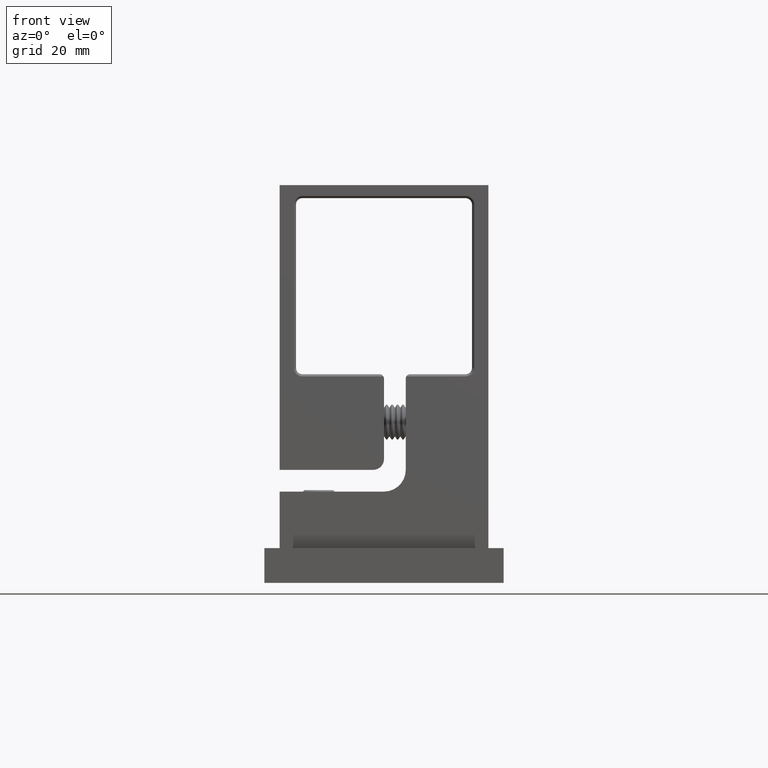
[diagram: clean part render]
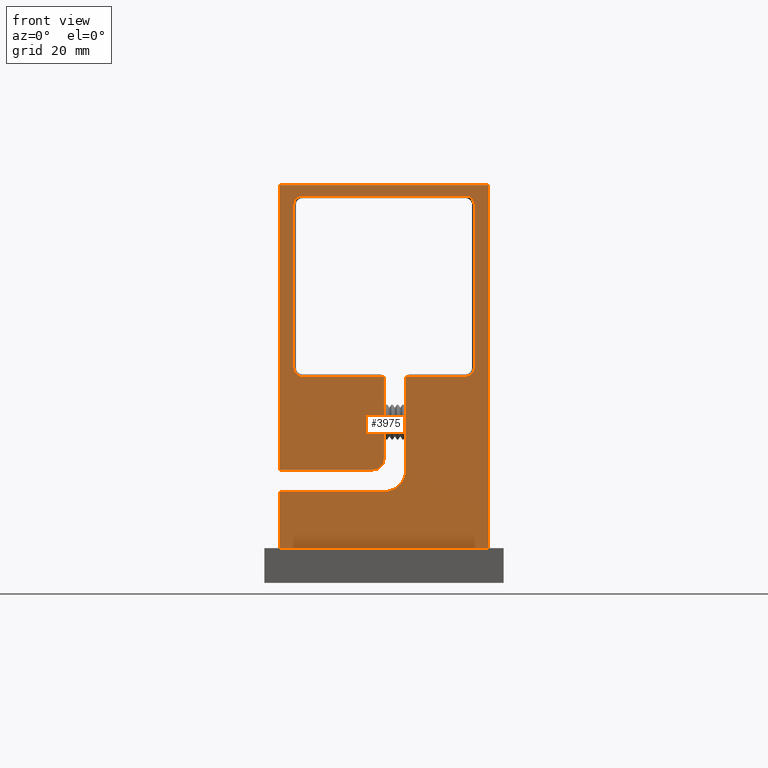
[diagram: same view with one face highlighted and labeled with its STEP entity id]
A machine part, front view. The second image highlights one B-rep face of the part: STEP entity #3975.
In plain terms, the highlighted planar face has unit normal (0, 1, 0).
Its self-contained STEP definition (entity closure, byte-faithful):
#139 = CARTESIAN_POINT ( 'NONE',  ( 8.000000000000007100, 18.00000000000004300, -4.999999999999990200 ) ) ;
#371 = CARTESIAN_POINT ( 'NONE',  ( 7.999999999999972500, 0.0000000000000000000, -23.99999999999993600 ) ) ;
#438 = CARTESIAN_POINT ( 'NONE',  ( 7.999999999999944900, 39.49999999999997900, -18.74999999999992200 ) ) ;
#552 = VERTEX_POINT ( 'NONE', #9338 ) ;
#743 = ORIENTED_EDGE ( 'NONE', *, *, #6823, .T. ) ;
#944 = VECTOR ( 'NONE', #17502, 1000.000000000000000 ) ;
#1029 = LINE ( 'NONE', #9520, #1566 ) ;
#1566 = VECTOR ( 'NONE', #6127, 1000.000000000000000 ) ;
#1908 = CARTESIAN_POINT ( 'NONE',  ( 7.999999999999992900, 39.00000000000000700, 0.9999999999999967800 ) ) ;
#2017 = ORIENTED_EDGE ( 'NONE', *, *, #2902, .T. ) ;
#2038 = LINE ( 'NONE', #3771, #22596 ) ;
#2316 = DIRECTION ( 'NONE',  ( 0.0000000000000000000, 0.0000000000000000000, 1.000000000000000000 ) ) ;
#2470 = AXIS2_PLACEMENT_3D ( 'NONE', #13537, #19080, #2624 ) ;
#2483 = VECTOR ( 'NONE', #12695, 1000.000000000000000 ) ;
#2589 = CARTESIAN_POINT ( 'NONE',  ( 7.999999999999992900, 83.49999999999998600, 23.99999999999998600 ) ) ;
#2624 = DIRECTION ( 'NONE',  ( 0.0000000000000000000, 0.0000000000000000000, 1.000000000000000000 ) ) ;
#2729 = VERTEX_POINT ( 'NONE', #5410 ) ;
#2815 = AXIS2_PLACEMENT_3D ( 'NONE', #3095, #23235, #4653 ) ;
#2819 = LINE ( 'NONE', #3996, #19709 ) ;
#2902 = EDGE_CURVE ( 'NONE', #11758, #3312, #20120, .T. ) ;
#3079 = ORIENTED_EDGE ( 'NONE', *, *, #10884, .T. ) ;
#3095 = CARTESIAN_POINT ( 'NONE',  ( 7.999999999999992900, 18.00000000000000400, -2.602085213965204300E-015 ) ) ;
#3125 = LINE ( 'NONE', #12433, #3966 ) ;
#3154 = VECTOR ( 'NONE', #19867, 1000.000000000000000 ) ;
#3239 = LINE ( 'NONE', #16218, #3806 ) ;
#3312 = VERTEX_POINT ( 'NONE', #438 ) ;
#3451 = ORIENTED_EDGE ( 'NONE', *, *, #10060, .T. ) ;
#3560 = CARTESIAN_POINT ( 'NONE',  ( 7.999999999999992900, 12.99999999999999800, 23.99999999999996800 ) ) ;
#3574 = LINE ( 'NONE', #11766, #20477 ) ;
#3662 = VERTEX_POINT ( 'NONE', #16167 ) ;
#3771 = CARTESIAN_POINT ( 'NONE',  ( 7.999999999999992900, 12.99999999999999800, 23.99999999999996800 ) ) ;
#3806 = VECTOR ( 'NONE', #5672, 1000.000000000000000 ) ;
#3860 = CARTESIAN_POINT ( 'NONE',  ( 7.999999999999992900, 39.49999999999997900, 2.499999999999996900 ) ) ;
#3966 = VECTOR ( 'NONE', #21078, 1000.000000000000000 ) ;
#3975 = ADVANCED_FACE ( 'NONE', ( #19810 ), #17726, .F. ) ;
#3996 = CARTESIAN_POINT ( 'NONE',  ( 7.999999999999992900, 20.50000000000001800, 3.081487911019577400E-030 ) ) ;
#4072 = VERTEX_POINT ( 'NONE', #17568 ) ;
#4250 = DIRECTION ( 'NONE',  ( 0.0000000000000000000, 0.0000000000000000000, 1.000000000000000000 ) ) ;
#4275 = LINE ( 'NONE', #14294, #8255 ) ;
#4326 = DIRECTION ( 'NONE',  ( -1.000000000000000000, 0.0000000000000000000, 0.0000000000000000000 ) ) ;
#4653 = DIRECTION ( 'NONE',  ( 0.0000000000000000000, 0.0000000000000000000, -1.000000000000000000 ) ) ;
#5108 = VECTOR ( 'NONE', #21746, 1000.000000000000000 ) ;
#5180 = DIRECTION ( 'NONE',  ( 1.000000000000000000, 0.0000000000000000000, 0.0000000000000000000 ) ) ;
#5237 = ORIENTED_EDGE ( 'NONE', *, *, #5570, .T. ) ;
#5284 = EDGE_CURVE ( 'NONE', #5728, #22527, #21180, .T. ) ;
#5389 = CIRCLE ( 'NONE', #15533, 2.499999999999995100 ) ;
#5410 = CARTESIAN_POINT ( 'NONE',  ( 7.999999999999992900, 20.50000000000001800, 4.336808689942048300E-016 ) ) ;
#5491 = CARTESIAN_POINT ( 'NONE',  ( 7.999999999999992900, 0.0000000000000000000, 23.99999999999997500 ) ) ;
#5570 = EDGE_CURVE ( 'NONE', #17339, #552, #7193, .T. ) ;
#5672 = DIRECTION ( 'NONE',  ( 0.0000000000000000000, 0.0000000000000000000, 1.000000000000000000 ) ) ;
#5700 = CIRCLE ( 'NONE', #18010, 0.9999999999999991100 ) ;
#5726 = DIRECTION ( 'NONE',  ( -1.000000000000000000, 0.0000000000000000000, 0.0000000000000000000 ) ) ;
#5728 = VERTEX_POINT ( 'NONE', #19840 ) ;
#5816 = VERTEX_POINT ( 'NONE', #371 ) ;
#5823 = ORIENTED_EDGE ( 'NONE', *, *, #18863, .T. ) ;
#5828 = EDGE_CURVE ( 'NONE', #17557, #5816, #12807, .T. ) ;
#5863 = CARTESIAN_POINT ( 'NONE',  ( 7.999999999999992900, 18.00000000000000400, 2.500000000000014200 ) ) ;
#5899 = CARTESIAN_POINT ( 'NONE',  ( 7.999999999999992900, 81.00000000000001400, 2.499999999999996900 ) ) ;
#6100 = EDGE_CURVE ( 'NONE', #552, #18666, #17555, .T. ) ;
#6127 = DIRECTION ( 'NONE',  ( 2.736911063134408900E-048, 1.000000000000000000, -1.246507886929438800E-016 ) ) ;
#6282 = LINE ( 'NONE', #3860, #20579 ) ;
#6288 = EDGE_CURVE ( 'NONE', #22527, #14088, #11960, .T. ) ;
#6305 = AXIS2_PLACEMENT_3D ( 'NONE', #13768, #13695, #15484 ) ;
#6496 = DIRECTION ( 'NONE',  ( 0.0000000000000000000, 1.000000000000000000, 0.0000000000000000000 ) ) ;
#6812 = CARTESIAN_POINT ( 'NONE',  ( 7.999999999999992900, 13.00000000000001100, 3.209238430557085600E-014 ) ) ;
#6823 = EDGE_CURVE ( 'NONE', #4072, #16934, #4275, .T. ) ;
#6899 = CARTESIAN_POINT ( 'NONE',  ( 7.999999999999992900, 39.00000000000000700, 3.081487911019577400E-030 ) ) ;
#7186 = EDGE_CURVE ( 'NONE', #11036, #10052, #19447, .T. ) ;
#7193 = CIRCLE ( 'NONE', #6305, 2.000000000000012000 ) ;
#7352 = ORIENTED_EDGE ( 'NONE', *, *, #12968, .T. ) ;
#7484 = CARTESIAN_POINT ( 'NONE',  ( 7.999999999999944900, 78.99999999999998600, -18.74999999999992900 ) ) ;
#7537 = ORIENTED_EDGE ( 'NONE', *, *, #16057, .T. ) ;
#7713 = EDGE_CURVE ( 'NONE', #16709, #18396, #8787, .T. ) ;
#8255 = VECTOR ( 'NONE', #10388, 1000.000000000000000 ) ;
#8392 = EDGE_CURVE ( 'NONE', #16934, #2729, #5389, .T. ) ;
#8570 = VECTOR ( 'NONE', #6496, 1000.000000000000000 ) ;
#8787 = CIRCLE ( 'NONE', #22871, 0.9999999999999988900 ) ;
#8797 = EDGE_CURVE ( 'NONE', #2729, #16709, #2819, .T. ) ;
#9095 = DIRECTION ( 'NONE',  ( 2.189528850507527200E-047, -1.000000000000000000, 5.337610695313239600E-016 ) ) ;
#9186 = DIRECTION ( 'NONE',  ( 0.0000000000000000000, 0.0000000000000000000, -1.000000000000000000 ) ) ;
#9338 = CARTESIAN_POINT ( 'NONE',  ( 8.000000000000007100, 41.50000000000000700, 20.74999999999997200 ) ) ;
#9520 = CARTESIAN_POINT ( 'NONE',  ( 7.999999999999972500, 0.0000000000000000000, -23.99999999999993600 ) ) ;
#9674 = DIRECTION ( 'NONE',  ( 0.0000000000000000000, 0.0000000000000000000, 1.000000000000000000 ) ) ;
#9900 = ORIENTED_EDGE ( 'NONE', *, *, #5828, .T. ) ;
#10052 = VERTEX_POINT ( 'NONE', #12612 ) ;
#10060 = EDGE_CURVE ( 'NONE', #18396, #17339, #11578, .T. ) ;
#10365 = DIRECTION ( 'NONE',  ( 0.0000000000000000000, 0.0000000000000000000, 1.000000000000000000 ) ) ;
#10388 = DIRECTION ( 'NONE',  ( 0.0000000000000000000, 0.0000000000000000000, -1.000000000000000000 ) ) ;
#10450 = CARTESIAN_POINT ( 'NONE',  ( 7.999999999999992900, 20.49999999999998900, 2.499999999999996900 ) ) ;
#10456 = DIRECTION ( 'NONE',  ( 0.0000000000000000000, -1.445602896647343800E-016, 1.000000000000000000 ) ) ;
#10805 = AXIS2_PLACEMENT_3D ( 'NONE', #7484, #5726, #2316 ) ;
#10884 = EDGE_CURVE ( 'NONE', #19980, #4072, #3574, .T. ) ;
#10940 = EDGE_LOOP ( 'NONE', ( #2017, #22413, #7537, #20481, #18130, #22382, #5823, #9900, #13742, #7352, #3079, #743, #13902, #12905, #21608, #3451, #5237, #19295, #18570, #18854, #11726, #11610 ) ) ;
#10987 = VERTEX_POINT ( 'NONE', #15570 ) ;
#11036 = VERTEX_POINT ( 'NONE', #16032 ) ;
#11264 = DIRECTION ( 'NONE',  ( 0.0000000000000000000, 0.0000000000000000000, 1.000000000000000000 ) ) ;
#11276 = CARTESIAN_POINT ( 'NONE',  ( 7.999999999999992900, 20.49999999999998900, 2.499999999999996900 ) ) ;
#11578 = LINE ( 'NONE', #19777, #2483 ) ;
#11610 = ORIENTED_EDGE ( 'NONE', *, *, #16605, .T. ) ;
#11726 = ORIENTED_EDGE ( 'NONE', *, *, #16339, .T. ) ;
#11758 = VERTEX_POINT ( 'NONE', #13274 ) ;
#11766 = CARTESIAN_POINT ( 'NONE',  ( 7.999999999999992900, 83.49999999999998600, 23.99999999999998600 ) ) ;
#11886 = CARTESIAN_POINT ( 'NONE',  ( 8.000000000000007100, 20.49999999999998900, 20.74999999999997200 ) ) ;
#11960 = CIRCLE ( 'NONE', #2815, 4.999999999999991100 ) ;
#12433 = CARTESIAN_POINT ( 'NONE',  ( 7.999999999999979600, 20.49999999999998900, -20.74999999999996400 ) ) ;
#12575 = EDGE_CURVE ( 'NONE', #5816, #10987, #1029, .T. ) ;
#12599 = DIRECTION ( 'NONE',  ( 1.000000000000000000, 0.0000000000000000000, 0.0000000000000000000 ) ) ;
#12612 = CARTESIAN_POINT ( 'NONE',  ( 7.999999999999944900, 81.00000000000001400, -18.74999999999991500 ) ) ;
#12695 = DIRECTION ( 'NONE',  ( 0.0000000000000000000, -3.909236002201266000E-016, 1.000000000000000000 ) ) ;
#12807 = LINE ( 'NONE', #5491, #3154 ) ;
#12905 = ORIENTED_EDGE ( 'NONE', *, *, #8797, .T. ) ;
#12968 = EDGE_CURVE ( 'NONE', #10987, #19980, #3239, .T. ) ;
#13068 = DIRECTION ( 'NONE',  ( 1.000000000000000000, 0.0000000000000000000, 0.0000000000000000000 ) ) ;
#13138 = CARTESIAN_POINT ( 'NONE',  ( 7.999999999999992900, 0.0000000000000000000, 23.99999999999997500 ) ) ;
#13274 = CARTESIAN_POINT ( 'NONE',  ( 7.999999999999979600, 41.50000000000000700, -20.74999999999996400 ) ) ;
#13537 = CARTESIAN_POINT ( 'NONE',  ( 7.999999999999944900, 41.50000000000000700, -18.74999999999992900 ) ) ;
#13695 = DIRECTION ( 'NONE',  ( -1.000000000000000000, 0.0000000000000000000, 0.0000000000000000000 ) ) ;
#13742 = ORIENTED_EDGE ( 'NONE', *, *, #12575, .T. ) ;
#13768 = CARTESIAN_POINT ( 'NONE',  ( 8.000000000000007100, 41.50000000000000700, 18.74999999999995400 ) ) ;
#13902 = ORIENTED_EDGE ( 'NONE', *, *, #8392, .T. ) ;
#14022 = DIRECTION ( 'NONE',  ( 0.0000000000000000000, 0.0000000000000000000, 1.000000000000000000 ) ) ;
#14088 = VERTEX_POINT ( 'NONE', #22870 ) ;
#14101 = CARTESIAN_POINT ( 'NONE',  ( 8.000000000000007100, 39.00000000000000700, -5.999999999999987600 ) ) ;
#14141 = CARTESIAN_POINT ( 'NONE',  ( 8.000000000000007100, 38.99999999999999300, -4.999999999999987600 ) ) ;
#14294 = CARTESIAN_POINT ( 'NONE',  ( 7.999999999999992900, 18.00000000000000400, 23.99999999999997900 ) ) ;
#15164 = CARTESIAN_POINT ( 'NONE',  ( 8.000000000000007100, 78.99999999999998600, 20.74999999999997200 ) ) ;
#15483 = CARTESIAN_POINT ( 'NONE',  ( 8.000000000000007100, 39.49999999999997900, 18.74999999999994000 ) ) ;
#15484 = DIRECTION ( 'NONE',  ( 0.0000000000000000000, 0.0000000000000000000, 1.000000000000000000 ) ) ;
#15533 = AXIS2_PLACEMENT_3D ( 'NONE', #11276, #13068, #9674 ) ;
#15570 = CARTESIAN_POINT ( 'NONE',  ( 7.999999999999972500, 83.49999999999998600, -23.99999999999994300 ) ) ;
#15916 = EDGE_CURVE ( 'NONE', #3312, #22975, #6282, .T. ) ;
#16032 = CARTESIAN_POINT ( 'NONE',  ( 8.000000000000007100, 81.00000000000001400, 18.74999999999994000 ) ) ;
#16057 = EDGE_CURVE ( 'NONE', #22975, #5728, #5700, .T. ) ;
#16167 = CARTESIAN_POINT ( 'NONE',  ( 7.999999999999979600, 78.99999999999998600, -20.74999999999996400 ) ) ;
#16218 = CARTESIAN_POINT ( 'NONE',  ( 7.999999999999972500, 83.49999999999998600, -23.99999999999994300 ) ) ;
#16339 = EDGE_CURVE ( 'NONE', #10052, #3662, #21393, .T. ) ;
#16605 = EDGE_CURVE ( 'NONE', #3662, #11758, #3125, .T. ) ;
#16709 = VERTEX_POINT ( 'NONE', #6899 ) ;
#16934 = VERTEX_POINT ( 'NONE', #5863 ) ;
#16947 = CARTESIAN_POINT ( 'NONE',  ( 8.000000000000007100, 78.99999999999998600, 18.74999999999995400 ) ) ;
#17339 = VERTEX_POINT ( 'NONE', #15483 ) ;
#17502 = DIRECTION ( 'NONE',  ( 0.0000000000000000000, -1.000000000000000000, -1.239088197126290100E-016 ) ) ;
#17555 = LINE ( 'NONE', #11886, #8570 ) ;
#17557 = VERTEX_POINT ( 'NONE', #13138 ) ;
#17568 = CARTESIAN_POINT ( 'NONE',  ( 7.999999999999992900, 18.00000000000000400, 23.99999999999997900 ) ) ;
#17726 = PLANE ( 'NONE',  #23283 ) ;
#17801 = DIRECTION ( 'NONE',  ( -1.000000000000000000, 0.0000000000000000000, 0.0000000000000000000 ) ) ;
#18010 = AXIS2_PLACEMENT_3D ( 'NONE', #14101, #5180, #14022 ) ;
#18129 = DIRECTION ( 'NONE',  ( 0.0000000000000000000, 1.000000000000000000, 0.0000000000000000000 ) ) ;
#18130 = ORIENTED_EDGE ( 'NONE', *, *, #6288, .T. ) ;
#18396 = VERTEX_POINT ( 'NONE', #18954 ) ;
#18559 = VERTEX_POINT ( 'NONE', #3560 ) ;
#18570 = ORIENTED_EDGE ( 'NONE', *, *, #18939, .T. ) ;
#18666 = VERTEX_POINT ( 'NONE', #15164 ) ;
#18854 = ORIENTED_EDGE ( 'NONE', *, *, #7186, .T. ) ;
#18863 = EDGE_CURVE ( 'NONE', #18559, #17557, #2038, .T. ) ;
#18939 = EDGE_CURVE ( 'NONE', #18666, #11036, #20608, .T. ) ;
#18954 = CARTESIAN_POINT ( 'NONE',  ( 7.999999999999992900, 39.49999999999999300, 0.1339745962155553800 ) ) ;
#19080 = DIRECTION ( 'NONE',  ( -1.000000000000000000, 0.0000000000000000000, 0.0000000000000000000 ) ) ;
#19295 = ORIENTED_EDGE ( 'NONE', *, *, #6100, .T. ) ;
#19447 = LINE ( 'NONE', #5899, #5108 ) ;
#19709 = VECTOR ( 'NONE', #18129, 1000.000000000000000 ) ;
#19777 = CARTESIAN_POINT ( 'NONE',  ( 7.999999999999992900, 39.49999999999999300, 2.500000000000004400 ) ) ;
#19810 = FACE_OUTER_BOUND ( 'NONE', #10940, .T. ) ;
#19840 = CARTESIAN_POINT ( 'NONE',  ( 8.000000000000007100, 38.99999999999999300, -4.999999999999986700 ) ) ;
#19867 = DIRECTION ( 'NONE',  ( 0.0000000000000000000, 0.0000000000000000000, -1.000000000000000000 ) ) ;
#19980 = VERTEX_POINT ( 'NONE', #2589 ) ;
#20002 = CARTESIAN_POINT ( 'NONE',  ( 8.000000000000007100, 39.49999999999997900, -5.133974596215541200 ) ) ;
#20120 = CIRCLE ( 'NONE', #2470, 2.000000000000012000 ) ;
#20247 = VECTOR ( 'NONE', #10456, 1000.000000000000000 ) ;
#20477 = VECTOR ( 'NONE', #20786, 1000.000000000000000 ) ;
#20481 = ORIENTED_EDGE ( 'NONE', *, *, #5284, .T. ) ;
#20579 = VECTOR ( 'NONE', #11264, 1000.000000000000000 ) ;
#20608 = CIRCLE ( 'NONE', #22399, 2.000000000000012000 ) ;
#20786 = DIRECTION ( 'NONE',  ( 0.0000000000000000000, -1.000000000000000000, -1.059373115100338400E-016 ) ) ;
#21078 = DIRECTION ( 'NONE',  ( 0.0000000000000000000, -1.000000000000000000, 0.0000000000000000000 ) ) ;
#21180 = LINE ( 'NONE', #14141, #944 ) ;
#21393 = CIRCLE ( 'NONE', #10805, 2.000000000000012000 ) ;
#21608 = ORIENTED_EDGE ( 'NONE', *, *, #7713, .T. ) ;
#21746 = DIRECTION ( 'NONE',  ( 0.0000000000000000000, 0.0000000000000000000, -1.000000000000000000 ) ) ;
#21929 = LINE ( 'NONE', #6812, #20247 ) ;
#21979 = EDGE_CURVE ( 'NONE', #14088, #18559, #21929, .T. ) ;
#22382 = ORIENTED_EDGE ( 'NONE', *, *, #21979, .T. ) ;
#22399 = AXIS2_PLACEMENT_3D ( 'NONE', #16947, #4326, #4250 ) ;
#22413 = ORIENTED_EDGE ( 'NONE', *, *, #15916, .T. ) ;
#22527 = VERTEX_POINT ( 'NONE', #139 ) ;
#22596 = VECTOR ( 'NONE', #9095, 1000.000000000000000 ) ;
#22871 = AXIS2_PLACEMENT_3D ( 'NONE', #1908, #12599, #9186 ) ;
#22870 = CARTESIAN_POINT ( 'NONE',  ( 7.999999999999992900, 13.00000000000001100, 3.384353667340022400E-014 ) ) ;
#22975 = VERTEX_POINT ( 'NONE', #20002 ) ;
#23235 = DIRECTION ( 'NONE',  ( -1.000000000000000000, 0.0000000000000000000, 0.0000000000000000000 ) ) ;
#23283 = AXIS2_PLACEMENT_3D ( 'NONE', #10450, #17801, #10365 ) ;